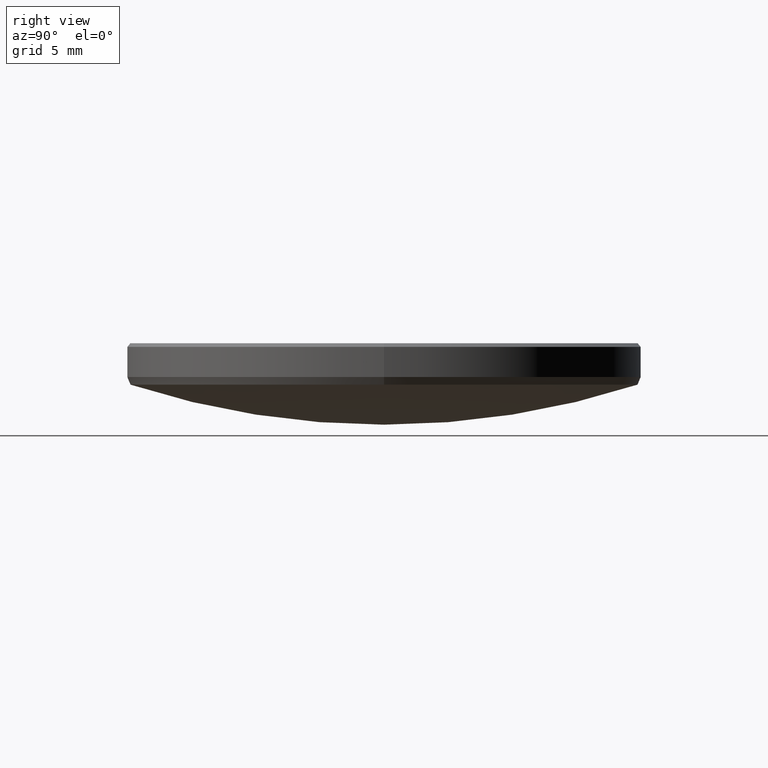
[diagram: clean part render]
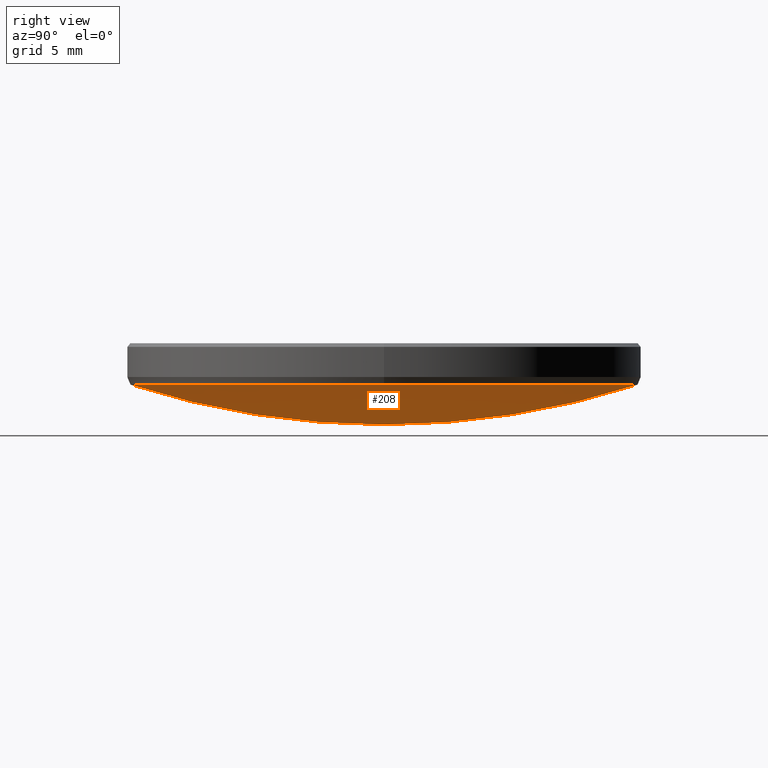
[diagram: same view with one face highlighted and labeled with its STEP entity id]
A machine part, right view. The second image highlights one B-rep face of the part: STEP entity #208.
In plain terms, the highlighted spherical surface has radius 40.6 mm.
Its self-contained STEP definition (entity closure, byte-faithful):
#4 = SPHERICAL_SURFACE ( 'NONE', #105, 40.59999999999999432 ) ;
#10 = AXIS2_PLACEMENT_3D ( 'NONE', #137, #64, #87 ) ;
#13 = DIRECTION ( 'NONE',  ( -1.224646799147353454E-16, -1.000000000000000000, 0.000000000000000000 ) ) ;
#15 = AXIS2_PLACEMENT_3D ( 'NONE', #266, #314, #13 ) ;
#17 = ORIENTED_EDGE ( 'NONE', *, *, #90, .T. ) ;
#26 = DIRECTION ( 'NONE',  ( 1.000000000000000000, 0.000000000000000000, 0.000000000000000000 ) ) ;
#52 = CARTESIAN_POINT ( 'NONE',  ( 0.000000000000000000, 0.000000000000000000, 3.938057364562333351 ) ) ;
#54 = VERTEX_POINT ( 'NONE', #175 ) ;
#64 = DIRECTION ( 'NONE',  ( 1.000000000000000000, -0.000000000000000000, 0.000000000000000000 ) ) ;
#65 = DIRECTION ( 'NONE',  ( 0.000000000000000000, 0.000000000000000000, -1.000000000000000000 ) ) ;
#85 = CARTESIAN_POINT ( 'NONE',  ( 0.000000000000000000, 0.000000000000000000, 42.56254659640620730 ) ) ;
#86 = CARTESIAN_POINT ( 'NONE',  ( 0.000000000000000000, 0.000000000000000000, 3.938057364562333351 ) ) ;
#87 = DIRECTION ( 'NONE',  ( 0.000000000000000000, 0.000000000000000000, -1.000000000000000000 ) ) ;
#90 = EDGE_CURVE ( 'NONE', #91, #198, #258, .T. ) ;
#91 = VERTEX_POINT ( 'NONE', #318 ) ;
#94 = ORIENTED_EDGE ( 'NONE', *, *, #294, .F. ) ;
#105 = AXIS2_PLACEMENT_3D ( 'NONE', #85, #284, #231 ) ;
#116 = DIRECTION ( 'NONE',  ( 1.000000000000000000, 0.000000000000000000, 0.000000000000000000 ) ) ;
#130 = CIRCLE ( 'NONE', #316, 12.51034897911231170 ) ;
#137 = CARTESIAN_POINT ( 'NONE',  ( 0.000000000000000000, 0.000000000000000000, 42.56254659640620730 ) ) ;
#153 = DIRECTION ( 'NONE',  ( 0.000000000000000000, 0.000000000000000000, -1.000000000000000000 ) ) ;
#157 = FACE_OUTER_BOUND ( 'NONE', #221, .T. ) ;
#161 = CARTESIAN_POINT ( 'NONE',  ( 0.000000000000000000, 12.51034897911230992, 3.938057364562333351 ) ) ;
#162 = EDGE_CURVE ( 'NONE', #276, #54, #219, .T. ) ;
#175 = CARTESIAN_POINT ( 'NONE',  ( -1.532075883348624801E-15, -12.51034897911230992, 3.938057364562333351 ) ) ;
#198 = VERTEX_POINT ( 'NONE', #161 ) ;
#208 = ADVANCED_FACE ( 'NONE', ( #157 ), #4, .T. ) ;
#209 = CARTESIAN_POINT ( 'NONE',  ( 12.51034897911231170, 0.000000000000000000, 3.938057364562333351 ) ) ;
#212 = CIRCLE ( 'NONE', #15, 40.59999999999999432 ) ;
#219 = CIRCLE ( 'NONE', #262, 12.51034897911231170 ) ;
#221 = EDGE_LOOP ( 'NONE', ( #94, #17, #251, #296 ) ) ;
#231 = DIRECTION ( 'NONE',  ( 0.000000000000000000, 1.000000000000000000, 0.000000000000000000 ) ) ;
#251 = ORIENTED_EDGE ( 'NONE', *, *, #326, .T. ) ;
#258 = CIRCLE ( 'NONE', #10, 40.59999999999999432 ) ;
#262 = AXIS2_PLACEMENT_3D ( 'NONE', #52, #153, #26 ) ;
#266 = CARTESIAN_POINT ( 'NONE',  ( 0.000000000000000000, 0.000000000000000000, 42.56254659640620730 ) ) ;
#276 = VERTEX_POINT ( 'NONE', #209 ) ;
#284 = DIRECTION ( 'NONE',  ( -1.000000000000000000, 0.000000000000000000, 0.000000000000000000 ) ) ;
#294 = EDGE_CURVE ( 'NONE', #91, #54, #212, .T. ) ;
#296 = ORIENTED_EDGE ( 'NONE', *, *, #162, .T. ) ;
#314 = DIRECTION ( 'NONE',  ( -1.000000000000000000, 1.224646799147353207E-16, 0.000000000000000000 ) ) ;
#316 = AXIS2_PLACEMENT_3D ( 'NONE', #86, #65, #116 ) ;
#318 = CARTESIAN_POINT ( 'NONE',  ( 0.000000000000000000, 2.486033002269126979E-15, 1.962546596406211652 ) ) ;
#326 = EDGE_CURVE ( 'NONE', #198, #276, #130, .T. ) ;